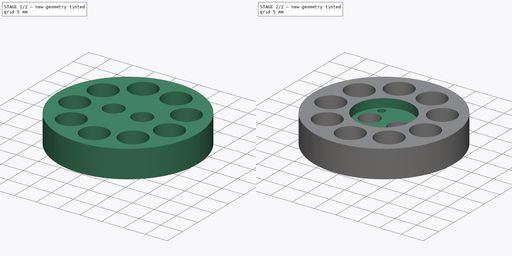
[diagram: build sequence overview — one tinted view per stage of 2, left to right]
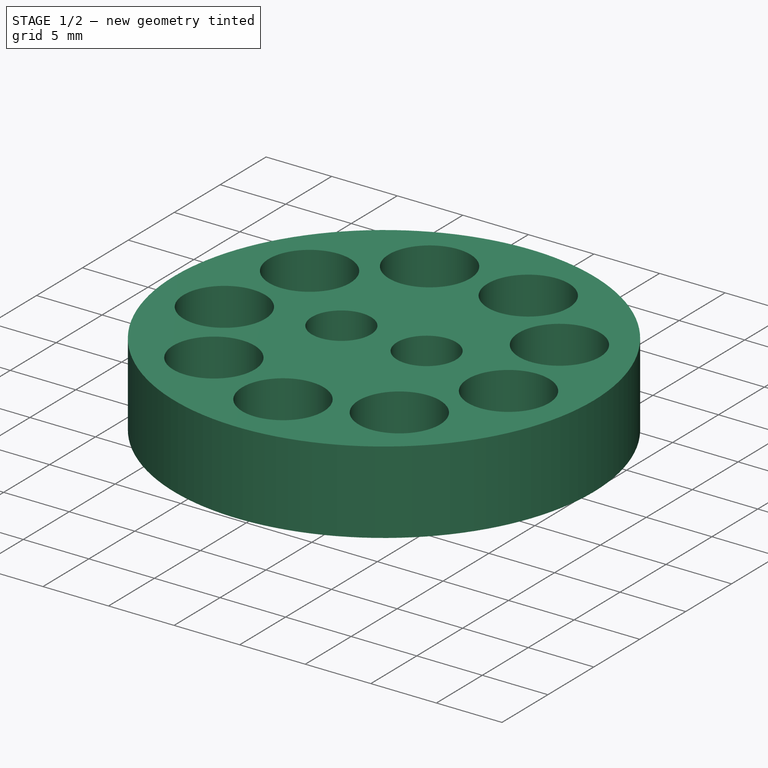
[diagram: stage 1 of 2 — iso view after this stage's code; geometry added in this stage tinted green]
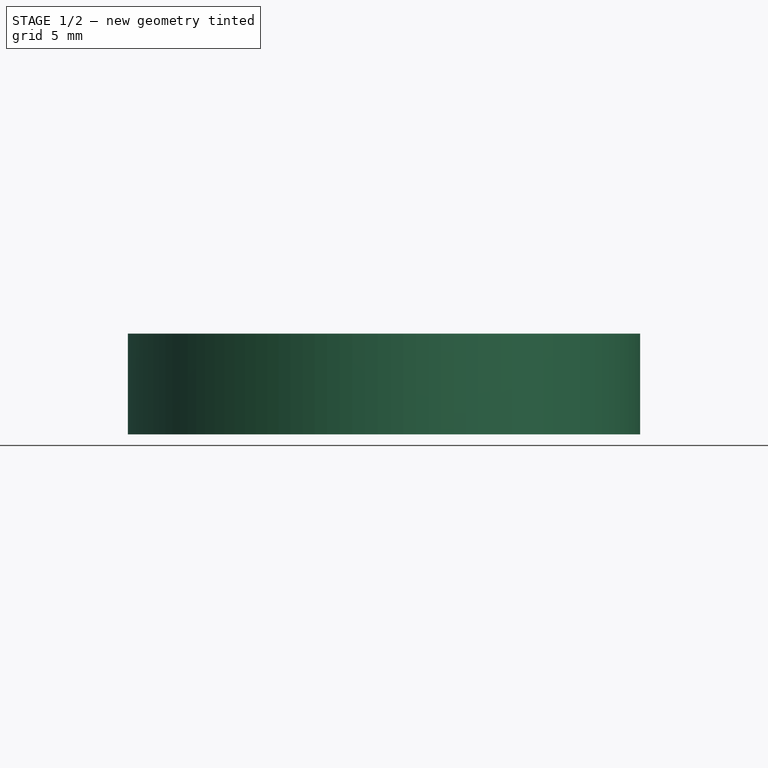
[diagram: stage 1 of 2 — front view after this stage's code; geometry added in this stage tinted green]
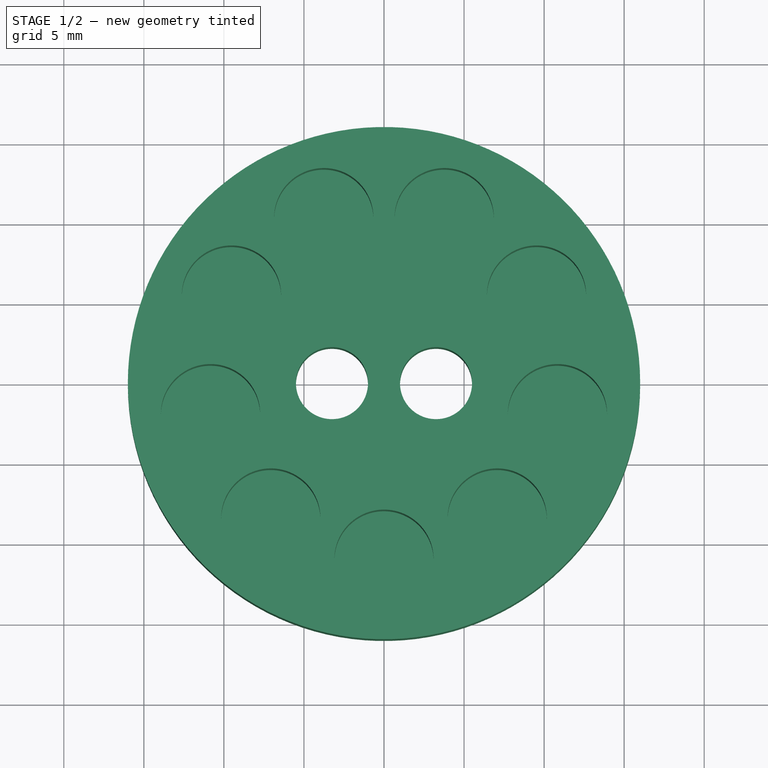
[diagram: stage 1 of 2 — top view after this stage's code; geometry added in this stage tinted green]
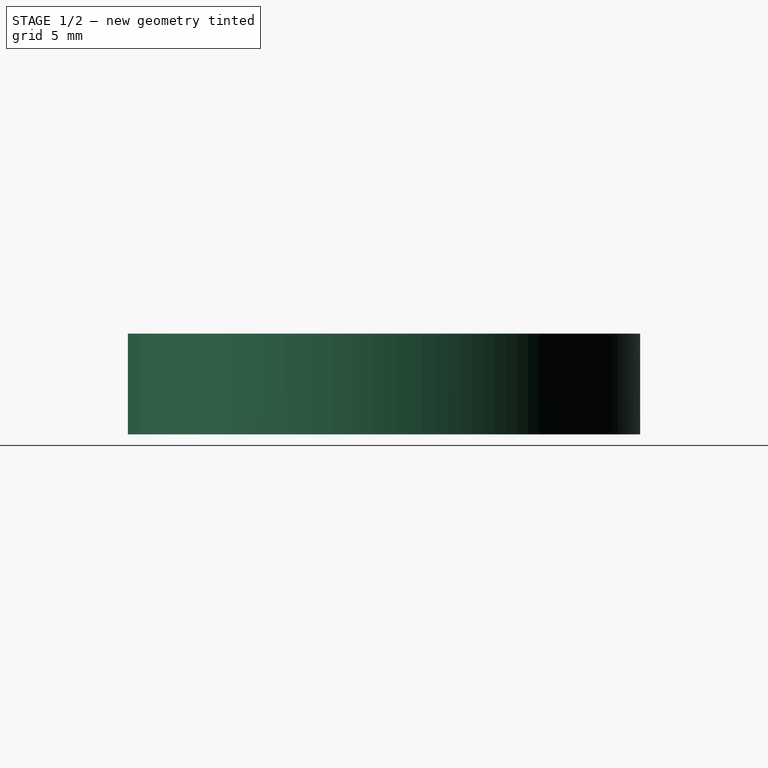
[diagram: stage 1 of 2 — right view after this stage's code; geometry added in this stage tinted green]
FCSTD DOCUMENT  (FreeCAD 0.19R)
Label: optical-meter-case
License: All rights reserved
LicenseURL: http://en.wikipedia.org/wiki/All_rights_reserved
objects: Sketcher::SketchObject×5, PartDesign::Pocket×3, PartDesign::Pad×1, PartDesign::Body×1
note: 14 computed .brp shape members not serialized (recipe doc carries the construction recipe); baked Part::Feature solids carry a one-line shape summary decoded from their .brp

FEATURE [Sketcher::SketchObject] Sketch
  FullyConstrained = true
  MapMode = 5
  Support = -> [XY_Plane]
  sketch-geometry (3):
    g0: Circle CenterX=0 CenterY=0 CenterZ=0 NormalX=0 NormalY=0 NormalZ=1 AngleXU=0 Radius=16
    g1: Circle CenterX=-3.25 CenterY=0 CenterZ=0 NormalX=0 NormalY=0 NormalZ=1 AngleXU=0 Radius=2.25
    g2: Circle CenterX=3.25 CenterY=0 CenterZ=0 NormalX=0 NormalY=0 NormalZ=1 AngleXU=0 Radius=2.25
  constraints (8):
    c: Coincident(g0,g-1)
    c: Diameter(g0) = 32
    c: PointOnObject(g1,g-1)
    c: PointOnObject(g2,g-1)
    c: Equal(g1,g2)
    c: Distance(g0,g2) = 3.25
    c: Distance(g1,g0) = 3.25
    c: Diameter(g1) = 4.5
FEATURE [PartDesign::Pad] Pad
  Direction = (0,0,1)
  Length = 6.3
  Length2 = 100
  Profile = -> Sketch
  Type = 0
FEATURE [Sketcher::SketchObject] Sketch001
  FullyConstrained = true
  MapMode = 5
  Placement = pos=(0,0,0) rot=(1,0,0;3.14159rad)
  Support = -> [Pad]
  sketch-geometry (56):
    g0: Circle CenterX=0 CenterY=0 CenterZ=0 NormalX=0 NormalY=0 NormalZ=1 AngleXU=0 Radius=6.5
    g1: Circle CenterX=0 CenterY=0 CenterZ=0 NormalX=0 NormalY=0 NormalZ=1 AngleXU=0 Radius=14
    g2: Circle CenterX=0 CenterY=0 CenterZ=0 NormalX=0 NormalY=0 NormalZ=1 AngleXU=0 Radius=8.5
    g3: Circle CenterX=0 CenterY=0 CenterZ=0 NormalX=0 NormalY=0 NormalZ=1 AngleXU=0 Radius=11.7
    g4: LineSegment StartX=-7.53846 StartY=9.82432 StartZ=0 EndX=-9.82432 EndY=7.53846 EndZ=0
    g5: LineSegment StartX=-9.82432 StartY=7.53846 StartZ=0 EndX=-11.4407 EndY=4.73888 EndZ=0
    g6: LineSegment StartX=-11.4407 StartY=4.73888 StartZ=0 EndX=-12.2773 EndY=1.61634 EndZ=0
    g7: LineSegment StartX=-12.2773 StartY=1.61634 StartZ=0 EndX=-12.2773 EndY=-1.61634 EndZ=0
    g8: LineSegment StartX=-12.2773 StartY=-1.61634 StartZ=0 EndX=-11.4407 EndY=-4.73888 EndZ=0
    g9: LineSegment StartX=-11.4407 StartY=-4.73888 StartZ=0 EndX=-9.82432 EndY=-7.53846 EndZ=0
    g10: LineSegment StartX=-9.82432 StartY=-7.53846 StartZ=0 EndX=-7.53846 EndY=-9.82432 EndZ=0
    g11: LineSegment StartX=-7.53846 StartY=-9.82432 StartZ=0 EndX=-4.73888 EndY=-11.4407 EndZ=0
    g12: LineSegment StartX=-4.73888 StartY=-11.4407 StartZ=0 EndX=-1.61634 EndY=-12.2773 EndZ=0
    g13: LineSegment StartX=-1.61634 StartY=-12.2773 StartZ=0 EndX=1.61634 EndY=-12.2773 EndZ=0
    g14: LineSegment StartX=1.61634 StartY=-12.2773 StartZ=0 EndX=4.73888 EndY=-11.4407 EndZ=0
    g15: LineSegment StartX=4.73888 StartY=-11.4407 StartZ=0 EndX=7.53846 EndY=-9.82432 EndZ=0
    g16: LineSegment StartX=7.53846 StartY=-9.82432 StartZ=0 EndX=9.82432 EndY=-7.53846 EndZ=0
    g17: LineSegment StartX=9.82432 StartY=-7.53846 StartZ=0 EndX=11.4407 EndY=-4.73888 EndZ=0
    g18: LineSegment StartX=11.4407 StartY=-4.73888 StartZ=0 EndX=12.2773 EndY=-1.61634 EndZ=0
    g19: LineSegment StartX=12.2773 StartY=-1.61634 StartZ=0 EndX=12.2773 EndY=1.61634 EndZ=0
    g20: LineSegment StartX=12.2773 StartY=1.61634 StartZ=0 EndX=11.4407 EndY=4.73888 EndZ=0
    g21: LineSegment StartX=11.4407 StartY=4.73888 StartZ=0 EndX=9.82432 EndY=7.53846 EndZ=0
    g22: LineSegment StartX=9.82432 StartY=7.53846 StartZ=0 EndX=7.53846 EndY=9.82432 EndZ=0
    g23: LineSegment StartX=7.53846 StartY=9.82432 StartZ=0 EndX=4.73888 EndY=11.4407 EndZ=0
    g24: LineSegment StartX=4.73888 StartY=11.4407 StartZ=0 EndX=1.61634 EndY=12.2773 EndZ=0
    g25: LineSegment StartX=1.61634 StartY=12.2773 StartZ=0 EndX=-1.61634 EndY=12.2773 EndZ=0
    g26: LineSegment StartX=-1.61634 StartY=12.2773 StartZ=0 EndX=-4.73888 EndY=11.4407 EndZ=0
    g27: LineSegment StartX=-4.73888 StartY=11.4407 StartZ=0 EndX=-7.53846 EndY=9.82432 EndZ=0
    g28: Circle CenterX=0 CenterY=0 CenterZ=0 NormalX=0 NormalY=0 NormalZ=1 AngleXU=0 Radius=12.3833
    g29: ArcOfCircle CenterX=9.41778 CenterY=2.52349 CenterZ=0 NormalX=0 NormalY=0 NormalZ=1 AngleXU=0 Radius=3 StartAngle=5.976 EndAngle=7.11397
    g30: ArcOfCircle CenterX=8.44375 CenterY=4.875 CenterZ=0 NormalX=0 NormalY=0 NormalZ=1 AngleXU=0 Radius=3 StartAngle=6.23779 EndAngle=7.37577
    g31: ArcOfCircle CenterX=9.75 CenterY=-5.9e-15 CenterZ=0 NormalX=0 NormalY=0 NormalZ=1 AngleXU=0 Radius=3 StartAngle=5.7142 EndAngle=6.85217
    g32: ArcOfCircle CenterX=9.41778 CenterY=-2.52349 CenterZ=0 NormalX=0 NormalY=0 NormalZ=1 AngleXU=0 Radius=3 StartAngle=5.4524 EndAngle=6.59038
    g33: ArcOfCircle CenterX=8.44375 CenterY=-4.875 CenterZ=0 NormalX=0 NormalY=0 NormalZ=1 AngleXU=0 Radius=3 StartAngle=5.1906 EndAngle=6.32858
    g34: ArcOfCircle CenterX=6.89429 CenterY=-6.89429 CenterZ=0 NormalX=0 NormalY=0 NormalZ=1 AngleXU=0 Radius=3 StartAngle=4.9288 EndAngle=6.06678
    g35: ArcOfCircle CenterX=4.875 CenterY=-8.44375 CenterZ=0 NormalX=0 NormalY=0 NormalZ=1 AngleXU=0 Radius=3 StartAngle=4.667 EndAngle=5.80498
    g36: ArcOfCircle CenterX=2.52349 CenterY=-9.41778 CenterZ=0 NormalX=0 NormalY=0 NormalZ=1 AngleXU=0 Radius=3 StartAngle=4.4052 EndAngle=5.54318
    g37: ArcOfCircle CenterX=-5.8e-15 CenterY=-9.75 CenterZ=0 NormalX=0 NormalY=0 NormalZ=1 AngleXU=0 Radius=3 StartAngle=4.1434 EndAngle=5.28138
    g38: ArcOfCircle CenterX=-2.52349 CenterY=-9.41778 CenterZ=0 NormalX=0 NormalY=0 NormalZ=1 AngleXU=0 Radius=3 StartAngle=3.8816 EndAngle=5.01958
    g39: ArcOfCircle CenterX=-4.875 CenterY=-8.44375 CenterZ=0 NormalX=0 NormalY=0 NormalZ=1 AngleXU=0 Radius=3 StartAngle=3.6198 EndAngle=4.75778
    g40: ArcOfCircle CenterX=-6.89429 CenterY=-6.89429 CenterZ=0 NormalX=0 NormalY=0 NormalZ=1 AngleXU=0 Radius=3 StartAngle=3.358 EndAngle=4.49598
    g41: ArcOfCircle CenterX=-8.44375 CenterY=-4.875 CenterZ=0 NormalX=0 NormalY=0 NormalZ=1 AngleXU=0 Radius=3 StartAngle=3.0962 EndAngle=4.23418
    g42: ArcOfCircle CenterX=-9.41778 CenterY=-2.52349 CenterZ=0 NormalX=0 NormalY=0 NormalZ=1 AngleXU=0 Radius=3 StartAngle=2.8344 EndAngle=3.97238
    g43: ArcOfCircle CenterX=-9.75 CenterY=5.2e-15 CenterZ=0 NormalX=0 NormalY=0 NormalZ=1 AngleXU=0 Radius=3 StartAngle=2.5726 EndAngle=3.71058
    g44: ArcOfCircle CenterX=-9.41778 CenterY=2.52349 CenterZ=0 NormalX=0 NormalY=0 NormalZ=1 AngleXU=0 Radius=3 StartAngle=2.3108 EndAngle=3.44878
    g45: ArcOfCircle CenterX=-8.44375 CenterY=4.875 CenterZ=0 NormalX=0 NormalY=0 NormalZ=1 AngleXU=0 Radius=3 StartAngle=2.049 EndAngle=3.18698
    g46: ArcOfCircle CenterX=-6.89429 CenterY=6.89429 CenterZ=0 NormalX=0 NormalY=0 NormalZ=1 AngleXU=0 Radius=3 StartAngle=1.78721 EndAngle=2.92518
    g47: ArcOfCircle CenterX=-4.875 CenterY=8.44375 CenterZ=0 NormalX=0 NormalY=0 NormalZ=1 AngleXU=0 Radius=3 StartAngle=1.52541 EndAngle=2.66338
    g48: ArcOfCircle CenterX=-2.52349 CenterY=9.41778 CenterZ=0 NormalX=0 NormalY=0 NormalZ=1 AngleXU=0 Radius=3 StartAngle=1.26361 EndAngle=2.40158
    g49: ArcOfCircle CenterX=5.8e-15 CenterY=9.75 CenterZ=0 NormalX=0 NormalY=0 NormalZ=1 AngleXU=0 Radius=3 StartAngle=1.00181 EndAngle=2.13979
    g50: ArcOfCircle CenterX=2.52349 CenterY=9.41778 CenterZ=0 NormalX=0 NormalY=0 NormalZ=1 AngleXU=0 Radius=3 StartAngle=0.740008 EndAngle=1.87799
    g51: ArcOfCircle CenterX=4.875 CenterY=8.44375 CenterZ=0 NormalX=0 NormalY=0 NormalZ=1 AngleXU=0 Radius=3 StartAngle=0.478208 EndAngle=1.61619
    g52: ArcOfCircle CenterX=6.89429 CenterY=6.89429 CenterZ=0 NormalX=0 NormalY=0 NormalZ=1 AngleXU=0 Radius=3 StartAngle=0.216409 EndAngle=1.35439
    g53: Circle CenterX=0 CenterY=0 CenterZ=0 NormalX=0 NormalY=0 NormalZ=1 AngleXU=0 Radius=9.75
    g54: Circle CenterX=9.41778 CenterY=2.52349 CenterZ=0 NormalX=0 NormalY=0 NormalZ=1 AngleXU=0 Radius=3
    g55: Circle CenterX=0 CenterY=0 CenterZ=0 NormalX=0 NormalY=0 NormalZ=1 AngleXU=0 Radius=6.75
  constraints (139):
    c: Coincident(g1,g0)
    c: Diameter(g1) = 28
    c: Diameter(g0) = 13  'spec-inner'
    c: Coincident(g2,g-1)
    c: Diameter(g2) = 17
    c: Coincident(g3,g2)
    c: Diameter(g3) = 23.4
    c: Coincident(g-1,g0)
    c: Coincident(g4,g5)
    c: Coincident(g5,g6)
    c: Coincident(g6,g7)
    c: Coincident(g7,g8)
    c: Coincident(g8,g9)
    c: Coincident(g9,g10)
    c: Coincident(g10,g11)
    c: Coincident(g11,g12)
    c: Coincident(g12,g13)
    c: Coincident(g13,g14)
    c: Coincident(g14,g15)
    c: Coincident(g15,g16)
    c: Coincident(g16,g17)
    c: Coincident(g17,g18)
    c: Coincident(g18,g19)
    c: Coincident(g19,g20)
    c: Coincident(g20,g21)
    c: Coincident(g21,g22)
    c: Coincident(g22,g23)
    c: Coincident(g23,g24)
    c: Coincident(g24,g25)
    c: Coincident(g25,g26)
    c: Coincident(g26,g27)
    c: Coincident(g27,g4)
    c: Equal(g4, g5-g27) x23
    c: PointOnObject(g4,g28)
    c: PointOnObject(g5,g28)
    c: PointOnObject(g6,g28)
    c: PointOnObject(g7,g28)
    c: PointOnObject(g8,g28)
    c: PointOnObject(g9,g28)
    c: PointOnObject(g10,g28)
    c: PointOnObject(g11,g28)
    c: PointOnObject(g12,g28)
    c: PointOnObject(g13,g28)
    c: PointOnObject(g14,g28)
    c: PointOnObject(g15,g28)
    c: PointOnObject(g16,g28)
    c: PointOnObject(g17,g28)
    c: PointOnObject(g18,g28)
    c: PointOnObject(g19,g28)
    c: PointOnObject(g20,g28)
    c: PointOnObject(g21,g28)
    c: PointOnObject(g22,g28)
    c: PointOnObject(g23,g28)
    c: PointOnObject(g24,g28)
    c: PointOnObject(g25,g28)
    c: PointOnObject(g26,g28)
    c: PointOnObject(g27,g28)
    c: Coincident(g28,g-1)
    c: Diameter(g28) = 24.7666
    c: Coincident(g29,g20)
    c: Coincident(g29,g19)
    c: Coincident(g30,g21)
    c: Coincident(g30,g20)
    c: Diameter(g30) = 6
    c: Equal(g30,g29)
    c: Parallel(g25,g-1)
    c: Coincident(g31,g19)
    c: Coincident(g31,g18)
    c: Coincident(g32,g18)
    c: Coincident(g32,g17)
    c: Coincident(g33,g17)
    c: Coincident(g33,g16)
    c: Coincident(g34,g16)
    c: Coincident(g34,g15)
    c: Coincident(g35,g15)
    c: Coincident(g35,g14)
    c: Coincident(g36,g14)
    c: Coincident(g36,g13)
    c: Coincident(g37,g13)
    c: Coincident(g37,g12)
    c: Coincident(g38,g11)
    c: Coincident(g38,g12)
    c: Coincident(g39,g11)
    c: Coincident(g39,g10)
    c: Coincident(g40,g9)
    c: Coincident(g40,g10)
    c: Coincident(g41,g9)
    c: Coincident(g41,g8)
    c: Coincident(g42,g7)
    c: Coincident(g42,g8)
    c: Coincident(g43,g7)
    c: Coincident(g43,g6)
    c: Coincident(g44,g6)
    c: Coincident(g44,g5)
    c: Coincident(g45,g5)
    c: Coincident(g45,g4)
    c: Coincident(g46,g4)
    c: Coincident(g46,g4)
    c: Coincident(g47,g4)
    c: Coincident(g47,g26)
    c: Coincident(g48,g26)
    c: Coincident(g48,g25)
    c: Coincident(g49,g25)
    c: Coincident(g49,g24)
    c: Coincident(g50,g24)
    c: Coincident(g50,g23)
    c: Coincident(g51,g23)
    c: Coincident(g51,g22)
    c: Coincident(g52,g22)
    c: Coincident(g52,g21)
    c: Equal(g52,g51)
    c: Equal(g51,g50)
    c: Equal(g50,g49)
    c: Equal(g49,g48)
    c: Equal(g48,g47)
    c: Equal(g47,g46)
    c: Equal(g46,g45)
    c: Equal(g45,g44)
    c: Equal(g44,g43)
    c: Equal(g43,g42)
    c: Equal(g42,g41)
    c: Equal(g41,g40)
    c: Equal(g40,g39)
    c: Equal(g39,g38)
    c: Equal(g38,g37)
    c: Equal(g37,g36)
    c: Equal(g36,g35)
    c: Equal(g35,g34)
    c: Equal(g34,g33)
    c: Equal(g33,g32)
    c: Equal(g32,g31)
    c: Equal(g31,g29)
    c: Coincident(g53,g-1)
    c: PointOnObject(g48,g53)
    c: Coincident(g54,g29)
    c: PointOnObject(g19,g54)
    c: Coincident(g55,g-1)
    c: Tangent(g55,g54)
    c: Diameter(g55) = 13.5
FEATURE [Sketcher::SketchObject] Sketch003
  FullyConstrained = false
  MapMode = 5
  Placement = pos=(0,0,6.3) rot=(0,0,1;0rad)
  Support = -> [Pad]
  sketch-geometry (22):
    g0: Circle CenterX=0 CenterY=0 CenterZ=0 NormalX=0 NormalY=0 NormalZ=1 AngleXU=0 Radius=6.5
    g1: Circle CenterX=0 CenterY=0 CenterZ=0 NormalX=0 NormalY=0 NormalZ=1 AngleXU=0 Radius=14
    g2: Circle CenterX=0 CenterY=0 CenterZ=0 NormalX=0 NormalY=0 NormalZ=1 AngleXU=0 Radius=11.7
    g3: Circle CenterX=0 CenterY=0 CenterZ=0 NormalX=0 NormalY=0 NormalZ=1 AngleXU=0 Radius=11
    g4: Circle CenterX=9.52628 CenterY=5.5 CenterZ=0 NormalX=0 NormalY=0 NormalZ=1 AngleXU=0 Radius=3.1
    g5: Circle CenterX=3.76222 CenterY=10.3366 CenterZ=0 NormalX=0 NormalY=0 NormalZ=1 AngleXU=0 Radius=3.1
    g6: Circle CenterX=-3.76222 CenterY=10.3366 CenterZ=0 NormalX=0 NormalY=0 NormalZ=1 AngleXU=0 Radius=3.1
    g7: Circle CenterX=-9.52628 CenterY=5.5 CenterZ=0 NormalX=0 NormalY=0 NormalZ=1 AngleXU=0 Radius=3.1
    g8: Circle CenterX=-10.8329 CenterY=-1.91013 CenterZ=0 NormalX=0 NormalY=0 NormalZ=1 AngleXU=0 Radius=3.1
    g9: Circle CenterX=-7.07066 CenterY=-8.42649 CenterZ=0 NormalX=0 NormalY=0 NormalZ=1 AngleXU=0 Radius=3.1
    g10: Circle CenterX=4.9614e-12 CenterY=-11 CenterZ=0 NormalX=0 NormalY=0 NormalZ=1 AngleXU=0 Radius=3.1
    g11: Circle CenterX=7.07066 CenterY=-8.42649 CenterZ=0 NormalX=0 NormalY=0 NormalZ=1 AngleXU=0 Radius=3.1
    g12: LineSegment StartX=9.52628 StartY=5.5 StartZ=0 EndX=3.76222 EndY=10.3366 EndZ=0
    g13: LineSegment StartX=3.76222 StartY=10.3366 StartZ=0 EndX=-3.76222 EndY=10.3366 EndZ=0
    g14: LineSegment StartX=-3.76222 StartY=10.3366 StartZ=0 EndX=-9.52628 EndY=5.5 EndZ=0
    g15: LineSegment StartX=-9.52628 StartY=5.5 StartZ=0 EndX=-10.8329 EndY=-1.91013 EndZ=0
    g16: LineSegment StartX=-10.8329 StartY=-1.91013 StartZ=0 EndX=-7.07066 EndY=-8.42649 EndZ=0
    g17: LineSegment StartX=-7.07066 StartY=-8.42649 StartZ=0 EndX=4.9614e-12 EndY=-11 EndZ=0
    g18: LineSegment StartX=4.9614e-12 StartY=-11 StartZ=0 EndX=7.07066 EndY=-8.42649 EndZ=0
    g19: Circle CenterX=10.8329 CenterY=-1.91013 CenterZ=0 NormalX=0 NormalY=0 NormalZ=1 AngleXU=0 Radius=3.1
    g20: LineSegment StartX=9.52628 StartY=5.5 StartZ=0 EndX=10.8329 EndY=-1.91013 EndZ=0
    g21: LineSegment StartX=10.8329 StartY=-1.91013 StartZ=0 EndX=7.07066 EndY=-8.42649 EndZ=0
  constraints (51):
    c: Coincident(g1,g0)
    c: Diameter(g0) = 13  'spec-inner'
    c: Diameter(g2) = 23.4
    c: Coincident(g-1,g0)
    c: Coincident(g3,g-1)
    c: Diameter(g4) = 6.2
    c: PointOnObject(g4,g3)
    c: PointOnObject(g5,g3)
    c: PointOnObject(g6,g3)
    c: PointOnObject(g7,g3)
    c: PointOnObject(g8,g3)
    c: PointOnObject(g9,g3)
    c: PointOnObject(g10,g3)
    c: PointOnObject(g11,g3)
    c: Coincident(g12,g4)
    c: Coincident(g12,g5)
    c: Coincident(g13,g5)
    c: Coincident(g13,g6)
    c: Coincident(g14,g6)
    c: Coincident(g14,g7)
    c: Coincident(g15,g8)
    c: Coincident(g16,g8)
    c: Coincident(g16,g9)
    c: Coincident(g17,g10)
    c: Coincident(g18,g11)
    c: Equal(g4,g5)
    c: Equal(g5,g6)
    c: Equal(g6,g7)
    c: Equal(g7,g8)
    c: Equal(g8,g9)
    c: Equal(g9,g10)
    c: Equal(g10,g11)
    c: Equal(g12,g13)
    c: Equal(g13,g14)
    c: Equal(g14,g15)
    c: Equal(g15,g16)
    c: Equal(g16,g17)
    c: Equal(g17,g18)
    c: Coincident(g9,g17)
    c: Coincident(g18,g10)
    c: PointOnObject(g19,g3)
    c: Coincident(g20,g4)
    c: Coincident(g20,g19)
    c: Equal(g20,g12)
    c: Equal(g19,g4)
    c: Coincident(g21,g19)
    c: Coincident(g21,g11)
    c: Equal(g20,g21)
    c: Coincident(g15,g7)
    c: Parallel(g13,g-1)
    c: Diameter(g3) = 22
FEATURE [PartDesign::Pocket] Pocket
  BaseFeature = -> Pad
  Length = 3
  Length2 = 100
  Offset = -0.3
  Profile = -> Sketch003
  Type = 2
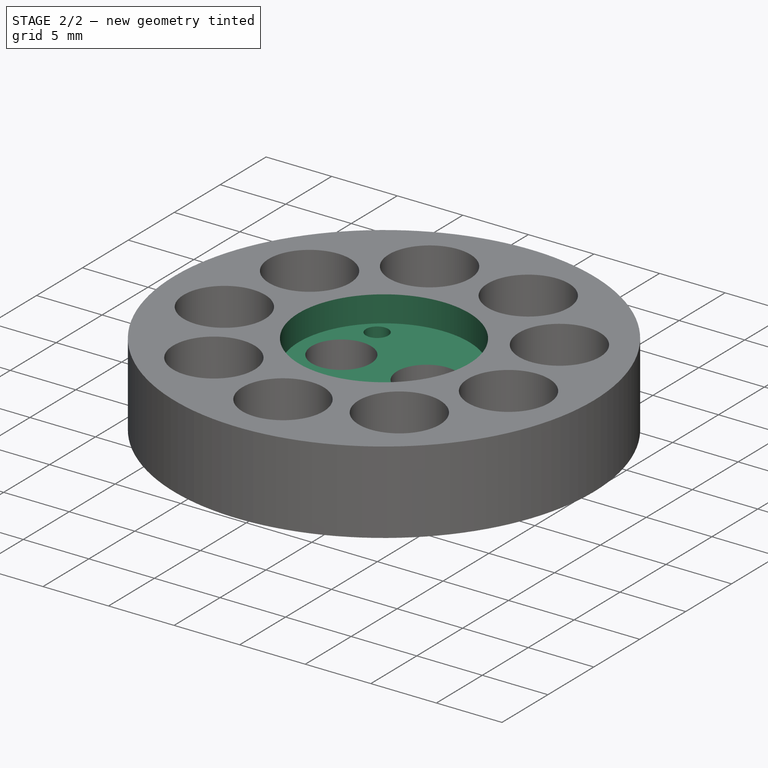
[diagram: stage 2 of 2 — iso view after this stage's code; geometry added in this stage tinted green]
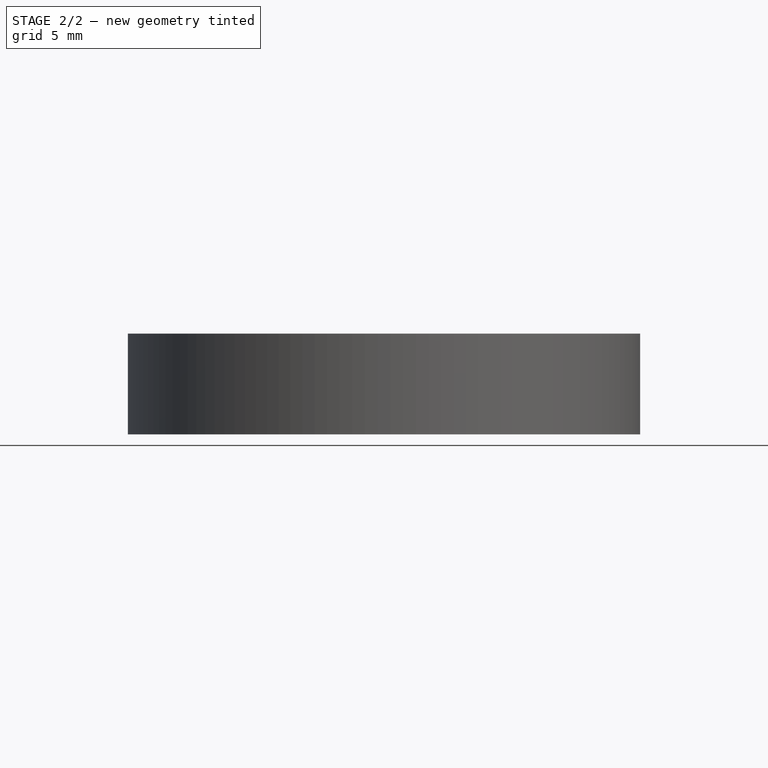
[diagram: stage 2 of 2 — front view after this stage's code; geometry added in this stage tinted green]
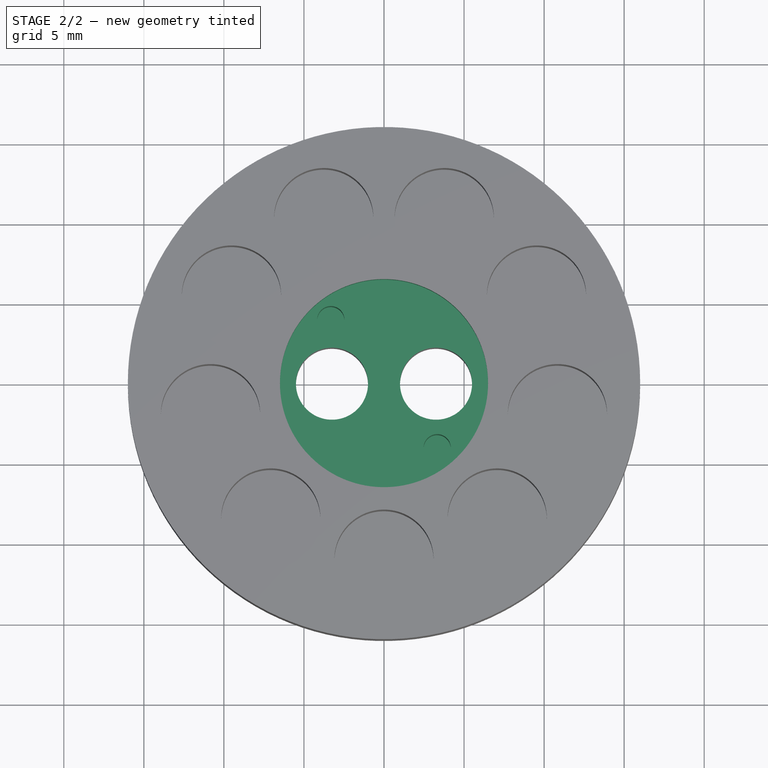
[diagram: stage 2 of 2 — top view after this stage's code; geometry added in this stage tinted green]
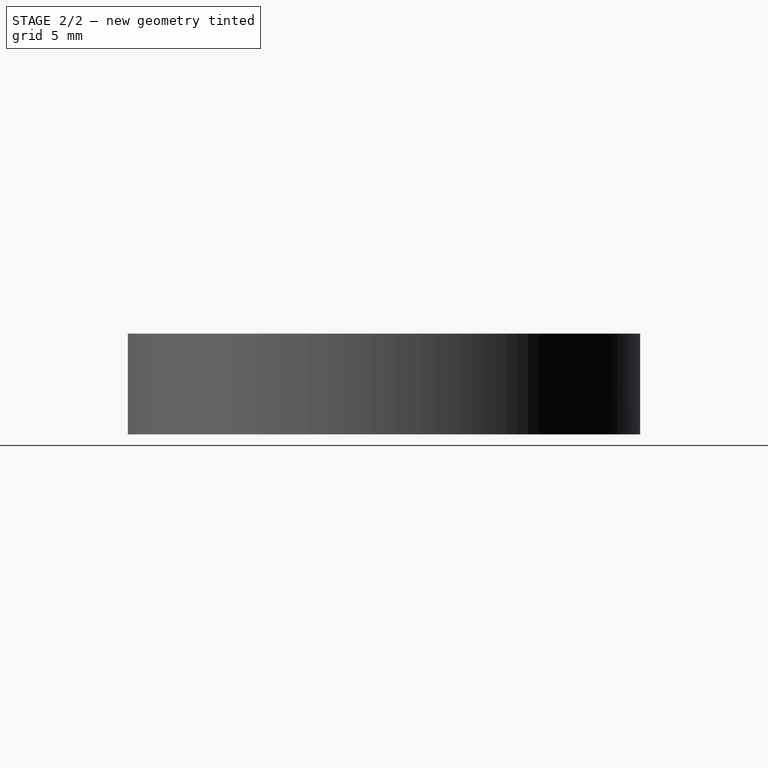
[diagram: stage 2 of 2 — right view after this stage's code; geometry added in this stage tinted green]
FEATURE [Sketcher::SketchObject] Sketch004
  FullyConstrained = true
  MapMode = 5
  Placement = pos=(0,0,6.3) rot=(0,0,1;0rad)
  Support = -> [Pocket]
  sketch-geometry (1):
    g0: Circle CenterX=0 CenterY=0 CenterZ=0 NormalX=0 NormalY=0 NormalZ=1 AngleXU=0 Radius=6.5
  constraints (2):
    c: Coincident(g0,g-1)
    c: Diameter(g0) = 13
FEATURE [PartDesign::Pocket] Pocket001
  BaseFeature = -> Pocket
  Length = 2
  Length2 = 100
  Profile = -> Sketch004
  Type = 0
FEATURE [Sketcher::SketchObject] Sketch005
  FullyConstrained = true
  MapMode = 5
  Placement = pos=(0,0,6.3) rot=(0,0,1;0rad)
  Support = -> [Pocket001]
  sketch-geometry (4):
    g0: Circle CenterX=3.32265 CenterY=-4 CenterZ=0 NormalX=0 NormalY=0 NormalZ=1 AngleXU=0 Radius=0.85
    g1: Circle CenterX=-3.32265 CenterY=4 CenterZ=0 NormalX=0 NormalY=0 NormalZ=1 AngleXU=0 Radius=0.85
    g2: LineSegment StartX=-3.32265 StartY=4 StartZ=0 EndX=0 EndY=0 EndZ=0
    g3: LineSegment StartX=3.32265 StartY=-4 StartZ=0 EndX=0 EndY=0 EndZ=0
  constraints (10):
    c: Equal(g0,g1)
    c: Coincident(g2,g1)
    c: Coincident(g2,g-1)
    c: Coincident(g3,g0)
    c: Coincident(g3,g-1)
    c: Equal(g2,g3)
    c: Distance(g2) = 5.2
    c: Diameter(g1) = 1.7
    c: DistanceY(g-1,g0) = -4
    c: DistanceY(g-1,g1) = 4
FEATURE [PartDesign::Pocket] Pocket002
  BaseFeature = -> Pocket001
  Length = 6
  Length2 = 100
  Offset = 3
  Profile = -> Sketch005
  Type = 0
FEATURE [PartDesign::Body] Body
  Group = -> [Sketch,Pad,Sketch001,Sketch003,Pocket,Sketch004,Pocket001,Sketch005,Pocket002]
  Origin = -> Origin
  Tip = -> Pocket002
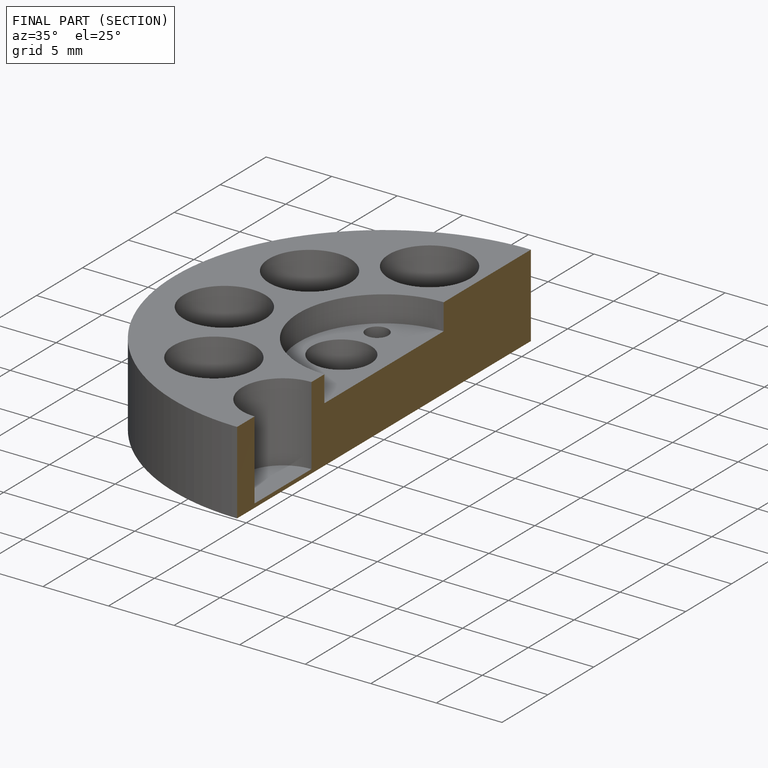
[diagram: finished part — half-section view (interior)]
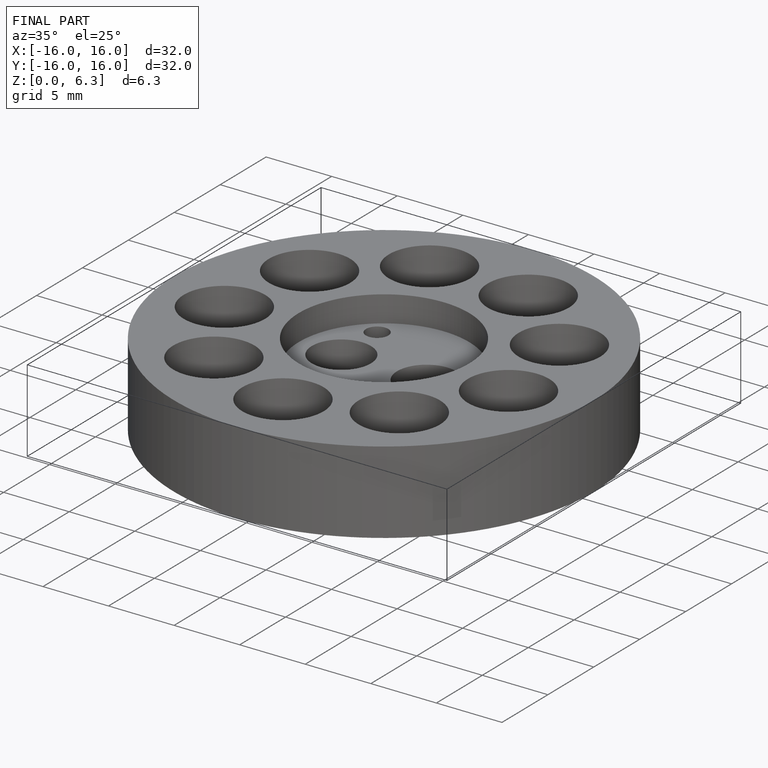
[diagram: finished part — iso view with bounding-box wireframe]
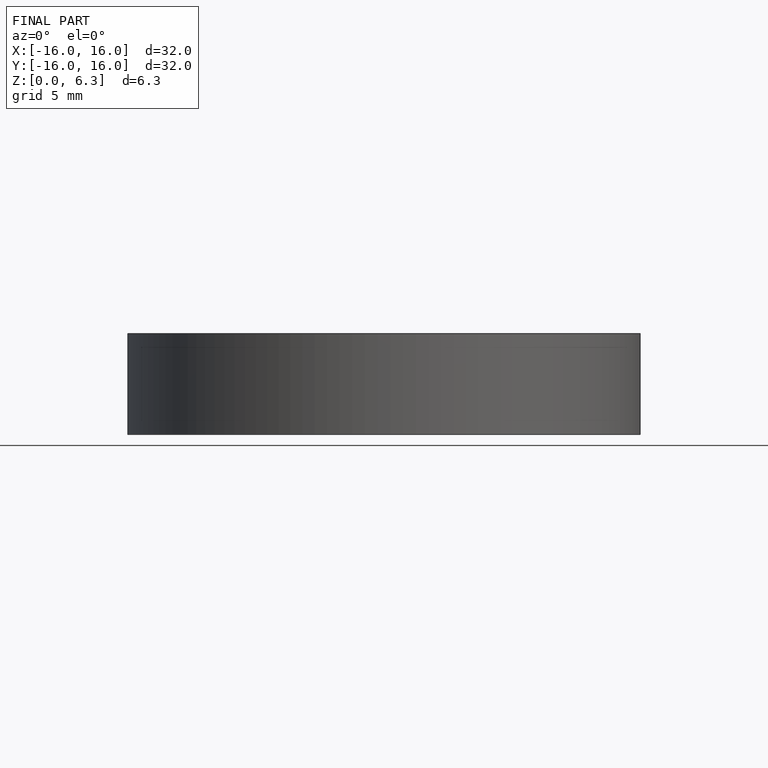
[diagram: finished part — front view with bounding-box wireframe]
